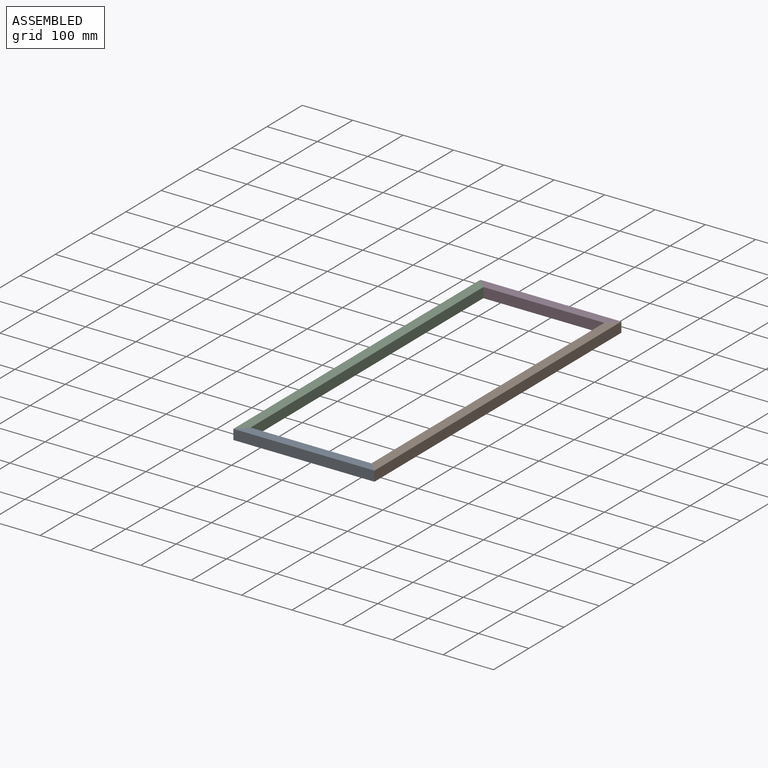
[diagram: assembled view]
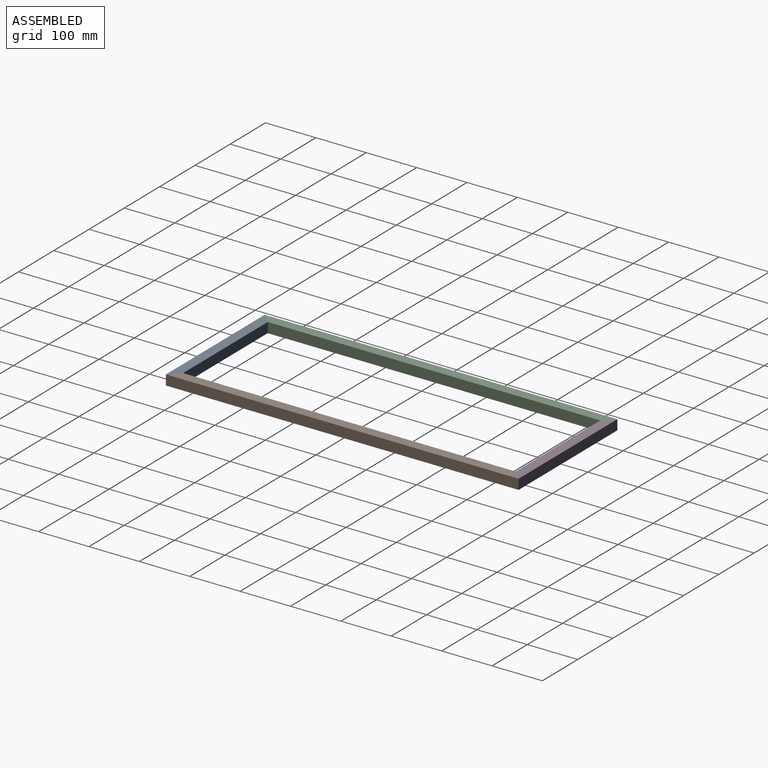
[diagram: assembled view, second angle]
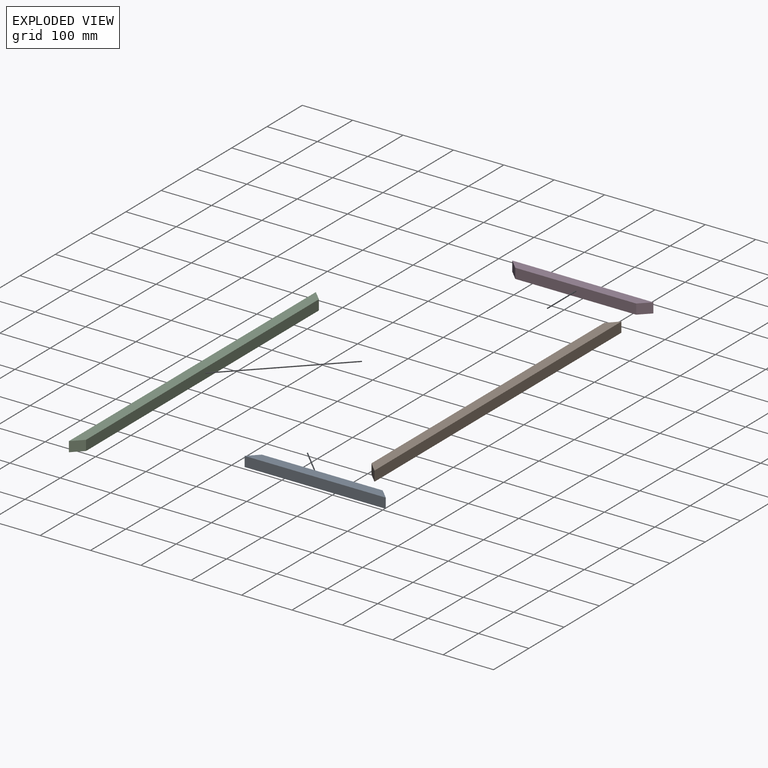
[diagram: exploded view]
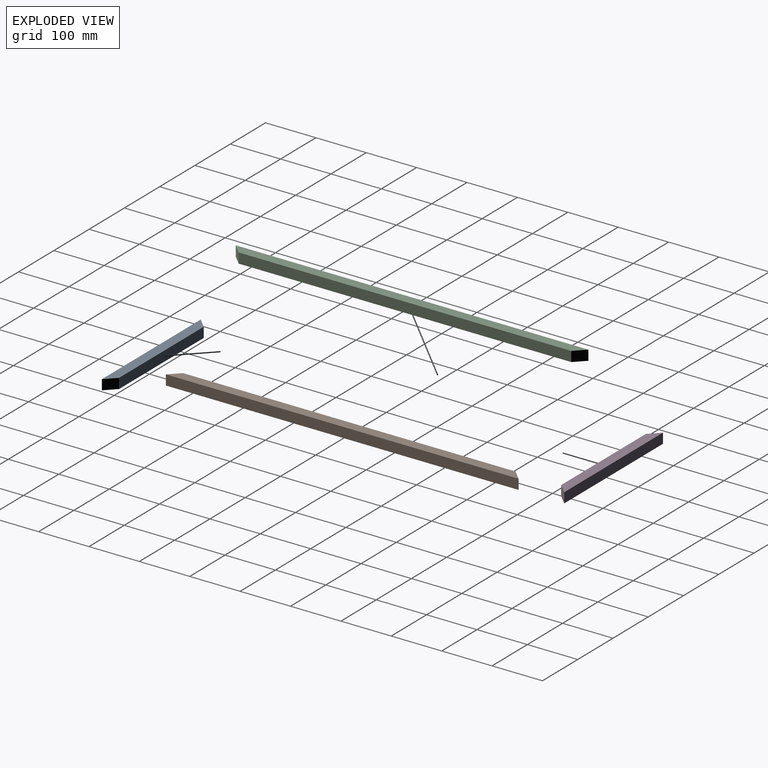
[diagram: exploded view, second angle]
ASSEMBLY  parts=4 mates=3
PART A: 6 faces, bbox 280x20x20 mm
  f0: plane 240x20mm, normal (0,-1,0), area 4800mm2, adj f2,f3,f4,f5
  f1: plane 280x20mm, normal (0,1,0), area 5600mm2, adj f2,f3,f4,f5
  f2: plane 280x20mm, normal (0,0,1), area 5200mm2, adj f0,f1,f4,f5
  f3: plane 280x20mm, normal (0,0,-1), area 5200mm2, adj f0,f1,f4,f5
  f4: plane 20x20mm, normal (0.71,-0.71,0), area 565.7mm2, adj f0,f1,f2,f3
  f5: plane 20x20mm, normal (-0.71,-0.71,0), area 565.7mm2, adj f0,f1,f2,f3
PART B: 6 faces, bbox 700x20x20 mm
  f0: plane 700x20mm, normal (0,-1,0), area 13600mm2, adj f2,f3,f4,f5
  f1: plane 700x20mm, normal (0,1,0), area 13600mm2, adj f2,f3,f4,f5
  f2: plane 660x20mm, normal (0,0,1), area 13200mm2, adj f0,f1,f4,f5
  f3: plane 700x20mm, normal (0,0,-1), area 14000mm2, adj f0,f1,f4,f5
  f4: plane 20x20mm, normal (0.71,0,0.71), area 565.7mm2, adj f0,f1,f2,f3
  f5: plane 20x20mm, normal (-0.71,0,0.71), area 565.7mm2, adj f0,f1,f2,f3
PART C: same geometry as B
PART D: same geometry as A
PLACE A rot(axis=(0,0,1),180deg) t=(-1599.25,-1328.79,-8.27)mm
PLACE B rot(axis=(-0.58,-0.58,0.58),120deg) t=(-1459.25,-937.47,17.53)mm
PLACE C rot(axis=(0.58,0.58,0.58),120deg) t=(-1739.25,-937.47,-14.07)mm
PLACE D t=(-1599.25,-648.79,-8.27)mm
MATE fastened C.f5 <-> A.f4  axis (0.71,-0.71,0) through (-1729.25,-1328.79,1.73)mm
MATE fastened B.f5 <-> A.f5  axis (-0.71,-0.71,0) through (-1469.25,-1328.79,1.73)mm
MATE fastened D.f5 <-> C.f4  axis (-0.71,-0.71,0) through (-1729.25,-648.79,1.73)mm
